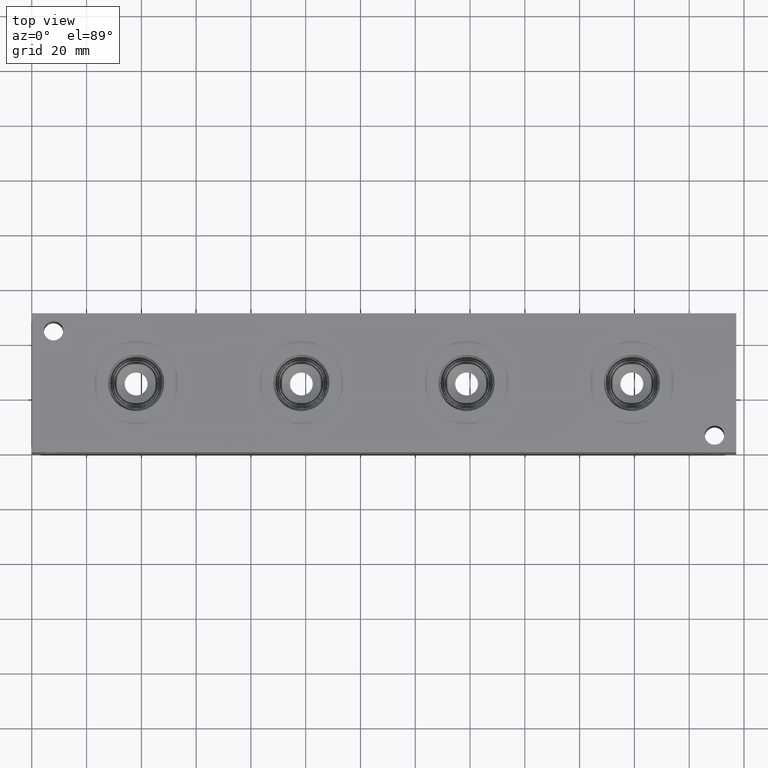
[diagram: clean part render]
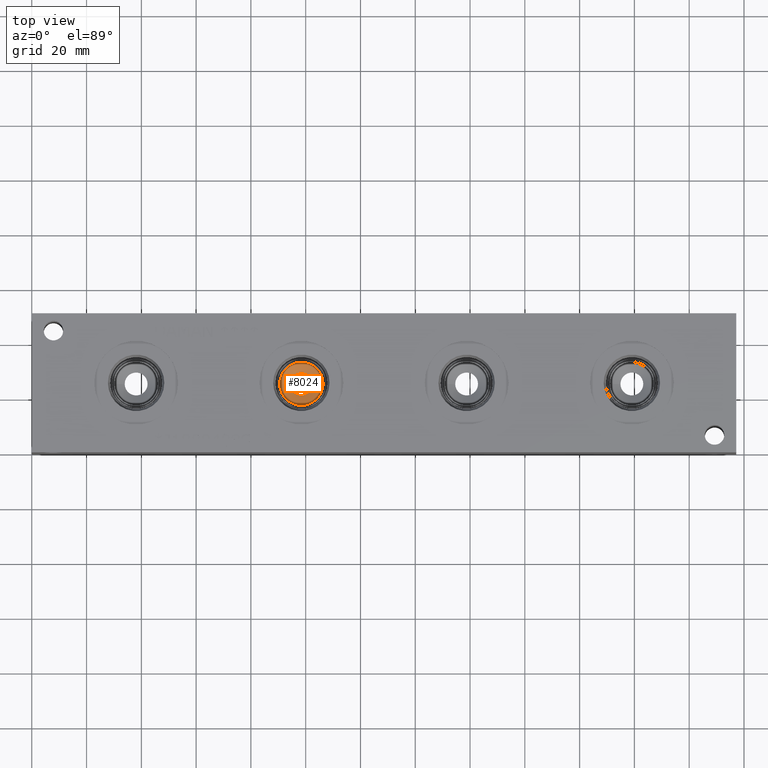
[diagram: same view with one face highlighted and labeled with its STEP entity id]
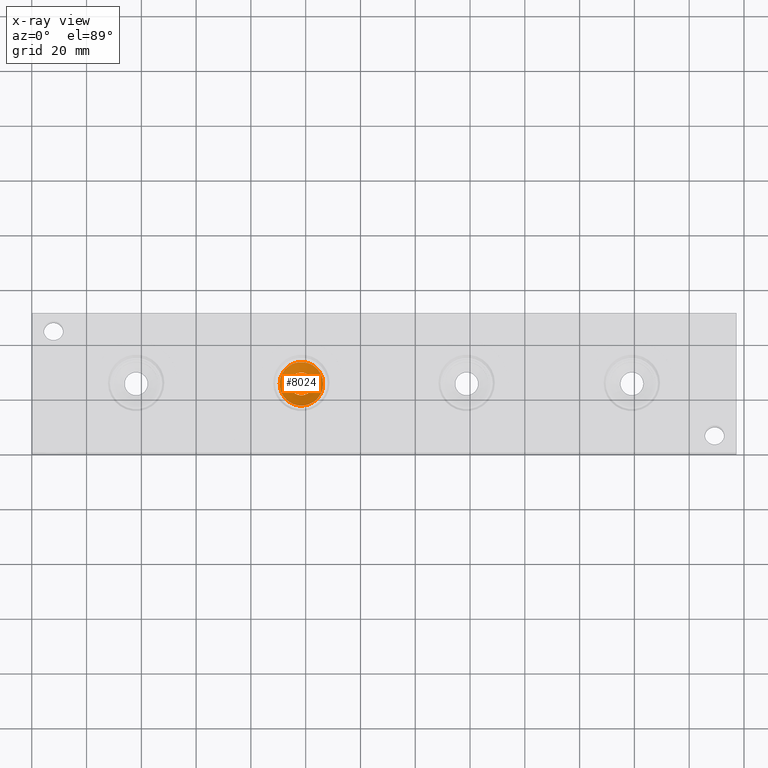
[diagram: x-ray of the same camera — body ghosted, the highlighted face saturated]
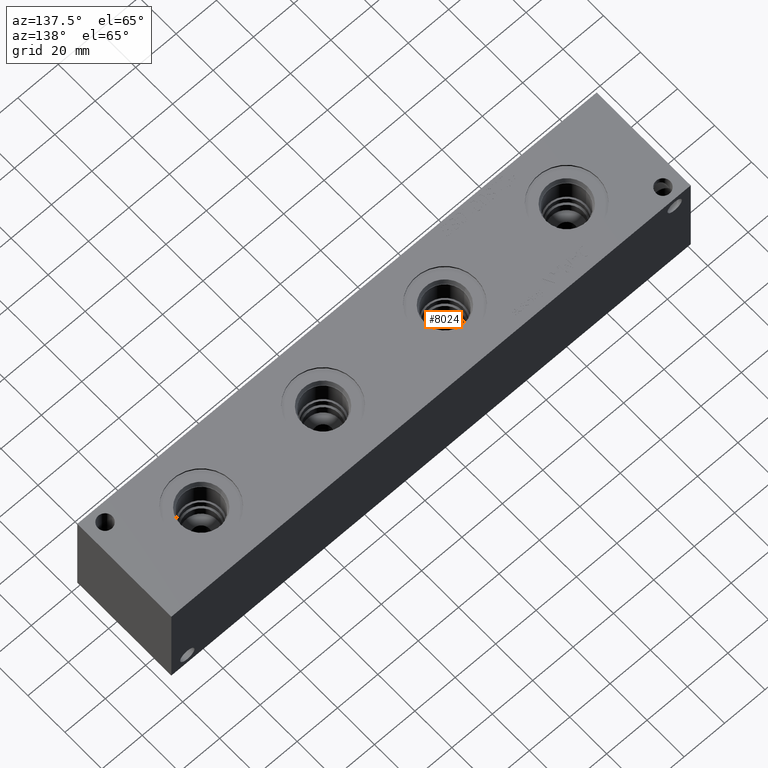
[diagram: same view with one face highlighted and labeled with its STEP entity id]
A machine part, top view. The second image highlights one B-rep face of the part: STEP entity #8024.
The next image is the same camera in x-ray: the body ghosted, the highlighted face saturated — about 0% of this face is hidden behind the body in this view.
A second angle (auxiliary view) of the same face is appended — the face is thin or edge-on in the first view.
In plain terms, the highlighted conical surface has half-angle 60 deg.
Its self-contained STEP definition (entity closure, byte-faithful):
#43=CONICAL_SURFACE('',#8463,3.96875,1.0471975511966);
#156=CIRCLE('',#8368,4.16668682785795);
#215=CIRCLE('',#8464,7.9375);
#216=CIRCLE('',#8465,7.9375);
#934=FACE_OUTER_BOUND('',#1396,.T.);
#1396=EDGE_LOOP('',(#7007,#7008,#7009,#7010,#7011));
#2152=LINE('',#13713,#2888);
#2888=VECTOR('',#10030,3.96875);
#3765=VERTEX_POINT('',#13526);
#3823=VERTEX_POINT('',#13710);
#3824=VERTEX_POINT('',#13711);
#4813=EDGE_CURVE('',#3765,#3765,#156,.T.);
#4901=EDGE_CURVE('',#3823,#3824,#215,.T.);
#4902=EDGE_CURVE('',#3824,#3765,#2152,.T.);
#4903=EDGE_CURVE('',#3824,#3823,#216,.T.);
#7007=ORIENTED_EDGE('',*,*,#4901,.T.);
#7008=ORIENTED_EDGE('',*,*,#4902,.T.);
#7009=ORIENTED_EDGE('',*,*,#4813,.T.);
#7010=ORIENTED_EDGE('',*,*,#4902,.F.);
#7011=ORIENTED_EDGE('',*,*,#4903,.T.);
#8024=ADVANCED_FACE('',(#934),#43,.F.);
#8368=AXIS2_PLACEMENT_3D('',#13528,#9807,#9808);
#8463=AXIS2_PLACEMENT_3D('',#13709,#10026,#10027);
#8464=AXIS2_PLACEMENT_3D('',#13712,#10028,#10029);
#8465=AXIS2_PLACEMENT_3D('',#13714,#10031,#10032);
#9807=DIRECTION('center_axis',(0.,0.,-1.));
#9808=DIRECTION('ref_axis',(1.,0.,0.));
#10026=DIRECTION('center_axis',(0.,0.,1.));
#10027=DIRECTION('ref_axis',(1.,0.,0.));
#10028=DIRECTION('center_axis',(0.,0.,1.));
#10029=DIRECTION('ref_axis',(1.,0.,0.));
#10030=DIRECTION('',(0.866025403784439,1.06057523872491E-16,-0.5));
#10031=DIRECTION('center_axis',(0.,0.,1.));
#10032=DIRECTION('ref_axis',(1.,0.,0.));
#13526=CARTESIAN_POINT('',(94.2583131721421,25.4,25.4));
#13528=CARTESIAN_POINT('Origin',(98.425,25.4,25.4));
#13709=CARTESIAN_POINT('Origin',(98.425,25.4,25.2857211191537));
#13710=CARTESIAN_POINT('',(106.3625,25.4,27.57708));
#13711=CARTESIAN_POINT('',(90.4875,25.4,27.57708));
#13712=CARTESIAN_POINT('Origin',(98.425,25.4,27.57708));
#13713=CARTESIAN_POINT('',(94.45625,25.4,25.2857211191537));
#13714=CARTESIAN_POINT('Origin',(98.425,25.4,27.57708));